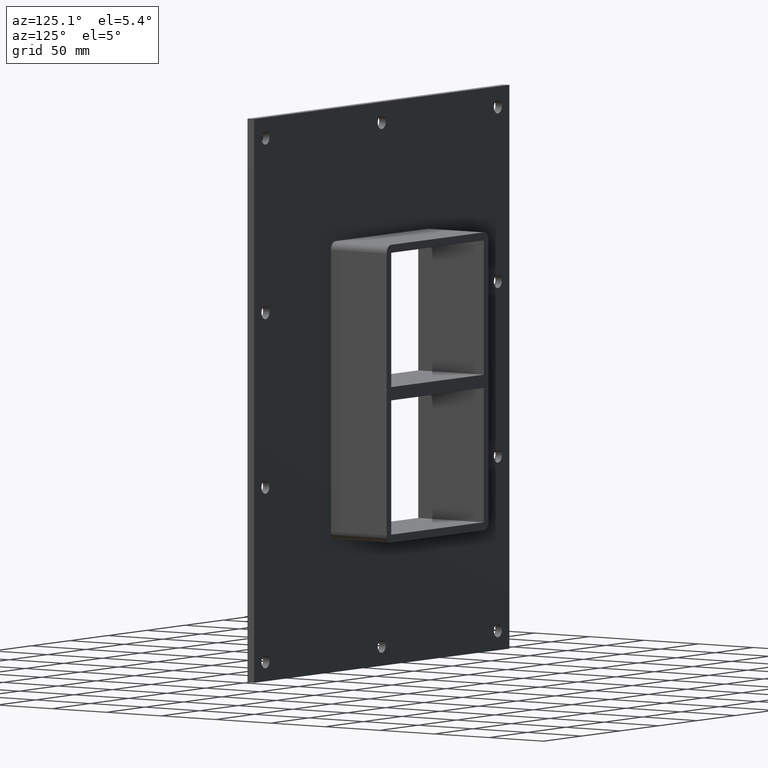
[diagram: clean part render]
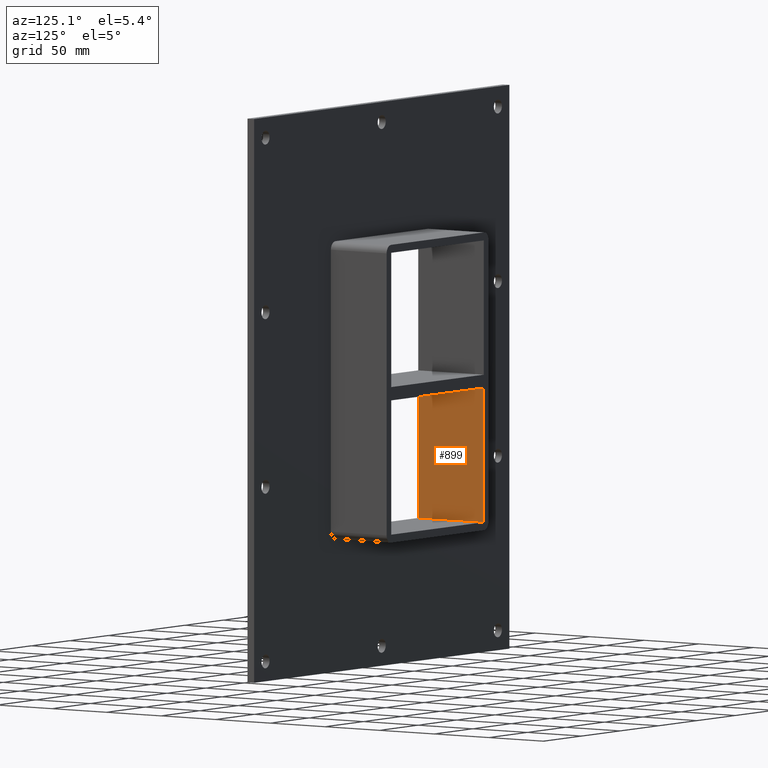
[diagram: same view with one face highlighted and labeled with its STEP entity id]
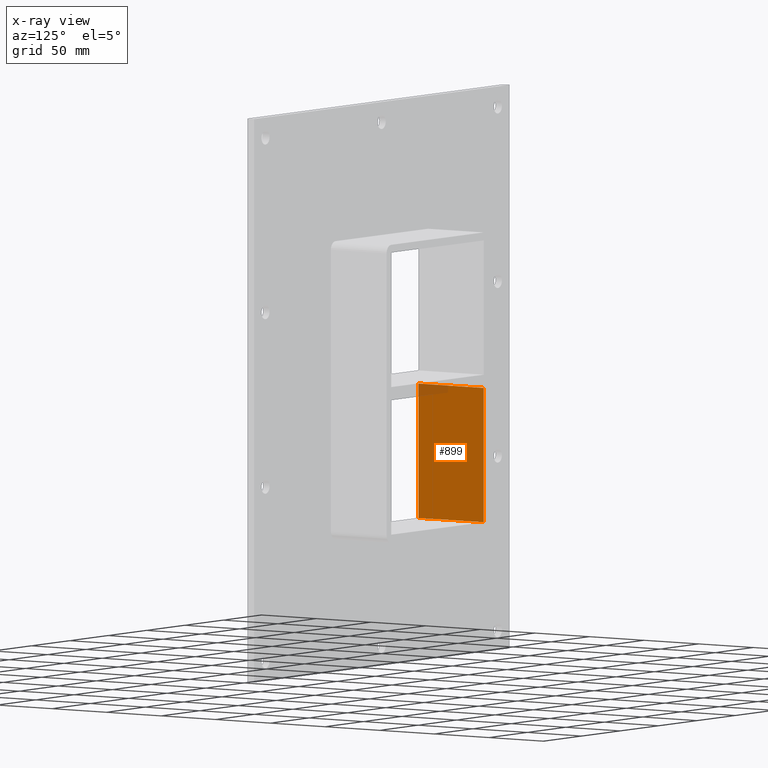
[diagram: x-ray of the same camera — body ghosted, the highlighted face saturated]
A machine part, auxiliary view. The second image highlights one B-rep face of the part: STEP entity #899.
The next image is the same camera in x-ray: the body ghosted, the highlighted face saturated — about 3% of this face is hidden behind the body in this view.
In plain terms, the highlighted planar face has unit normal (-1, 0, 0).
Its self-contained STEP definition (entity closure, byte-faithful):
#355=CARTESIAN_POINT('',(-60.249999999997627,-3.0,-5.000000000011369));
#356=VERTEX_POINT('',#355);
#363=CARTESIAN_POINT('',(-60.249999999997627,57.0,-5.000000000011369));
#364=VERTEX_POINT('',#363);
#365=CARTESIAN_POINT('',(-60.25,57.000000000000007,-5.000000000011369));
#366=DIRECTION('',(0.0,-1.0,0.0));
#367=VECTOR('',#366,60.000000000000007);
#368=LINE('',#365,#367);
#369=EDGE_CURVE('',#364,#356,#368,.T.);
#869=CARTESIAN_POINT('',(-60.25,0.0,-106.00000000000001));
#870=DIRECTION('',(-1.0,0.0,0.0));
#871=DIRECTION('',(0.0,0.0,1.0));
#872=AXIS2_PLACEMENT_3D('',#869,#870,#871);
#873=PLANE('',#872);
#874=ORIENTED_EDGE('',*,*,#369,.T.);
#875=CARTESIAN_POINT('',(-60.250000000000014,-3.0,-106.00000000000001));
#876=VERTEX_POINT('',#875);
#877=CARTESIAN_POINT('',(-60.25,-3.0,-106.00000000000001));
#878=DIRECTION('',(0.0,0.0,1.0));
#879=VECTOR('',#878,100.99999999998865);
#880=LINE('',#877,#879);
#881=EDGE_CURVE('',#876,#356,#880,.T.);
#882=ORIENTED_EDGE('',*,*,#881,.F.);
#883=CARTESIAN_POINT('',(-60.250000000000014,57.0,-106.00000000000001));
#884=VERTEX_POINT('',#883);
#885=CARTESIAN_POINT('',(-60.25,-3.0,-106.00000000000001));
#886=DIRECTION('',(0.0,1.0,0.0));
#887=VECTOR('',#886,60.0);
#888=LINE('',#885,#887);
#889=EDGE_CURVE('',#876,#884,#888,.T.);
#890=ORIENTED_EDGE('',*,*,#889,.T.);
#891=CARTESIAN_POINT('',(-60.25,57.0,-5.000000000011369));
#892=DIRECTION('',(0.0,0.0,-1.0));
#893=VECTOR('',#892,100.99999999998865);
#894=LINE('',#891,#893);
#895=EDGE_CURVE('',#364,#884,#894,.T.);
#896=ORIENTED_EDGE('',*,*,#895,.F.);
#897=EDGE_LOOP('',(#874,#882,#890,#896));
#898=FACE_OUTER_BOUND('',#897,.T.);
#899=ADVANCED_FACE('',(#898),#873,.F.);